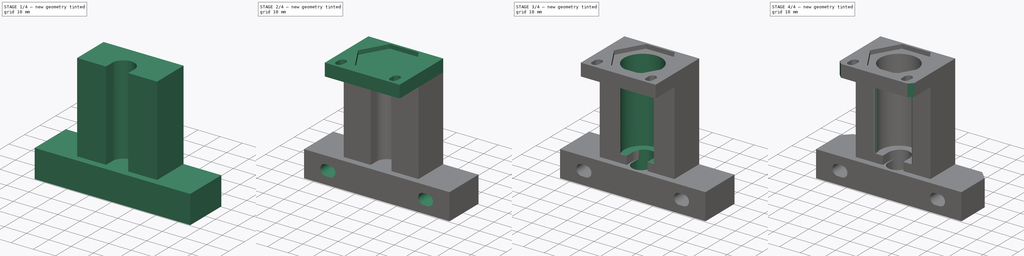
[diagram: build sequence overview — one tinted view per stage of 4, left to right]
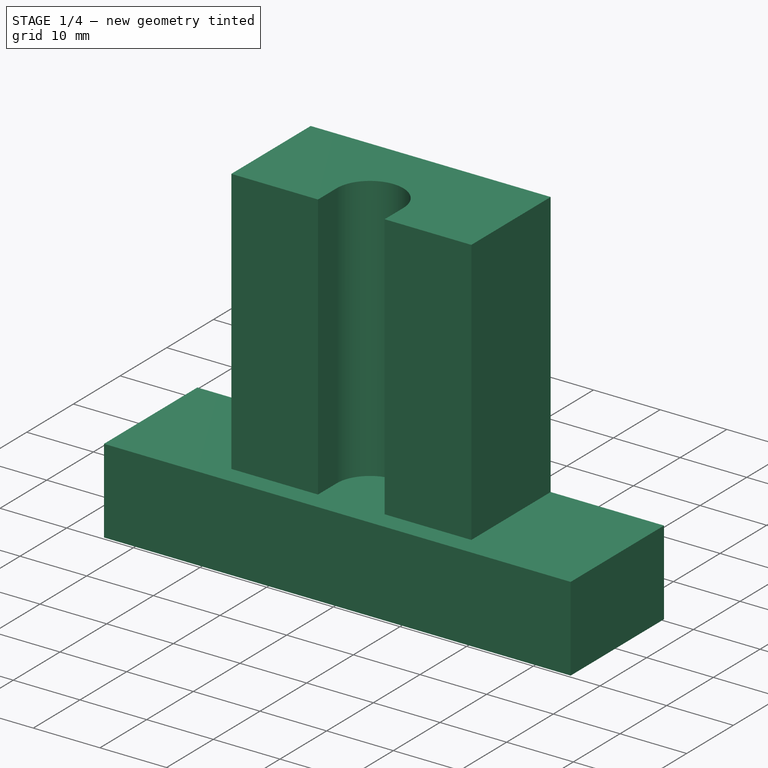
[diagram: stage 1 of 4 — iso view after this stage's code; geometry added in this stage tinted green]
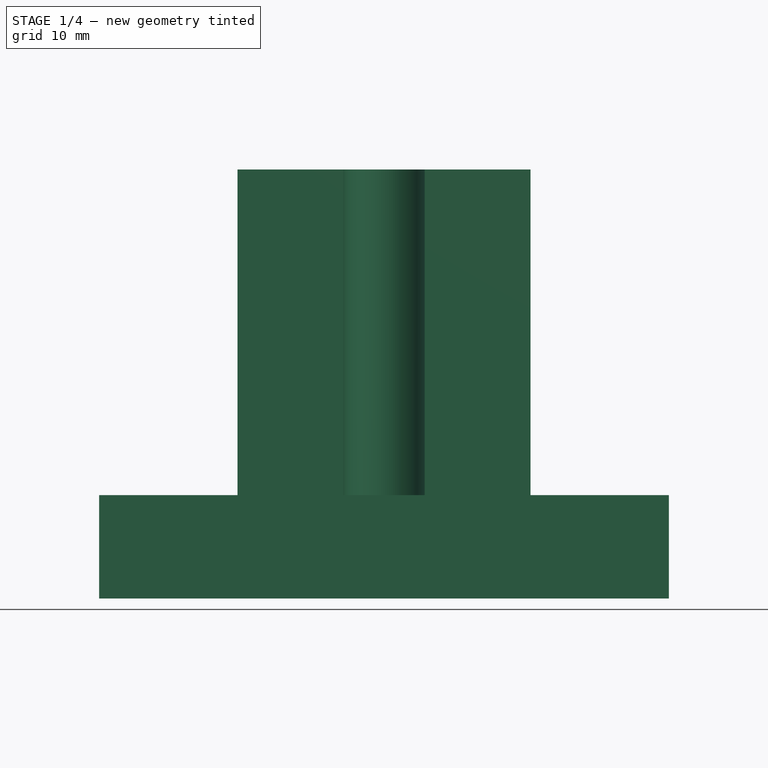
[diagram: stage 1 of 4 — front view after this stage's code; geometry added in this stage tinted green]
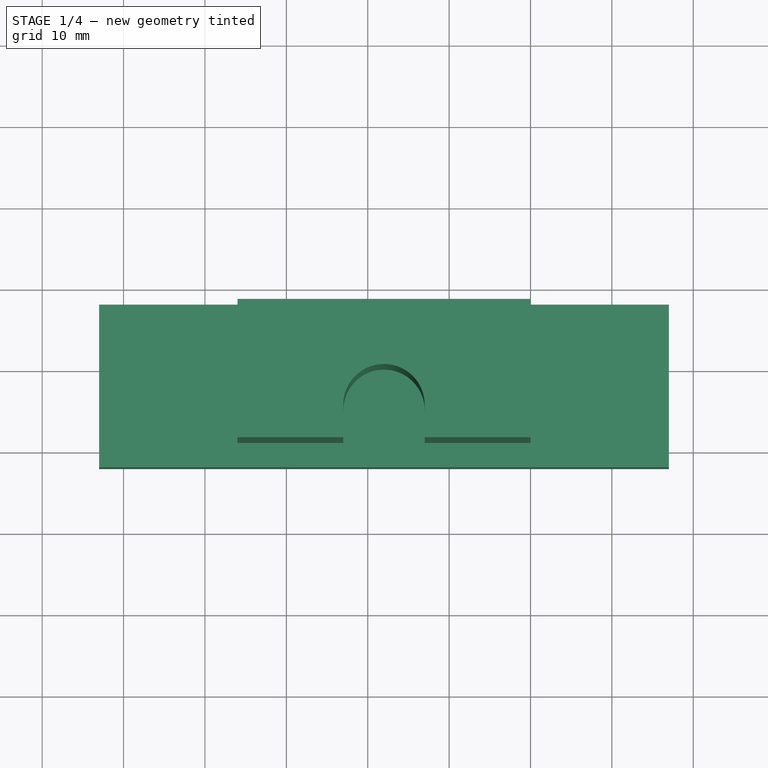
[diagram: stage 1 of 4 — top view after this stage's code; geometry added in this stage tinted green]
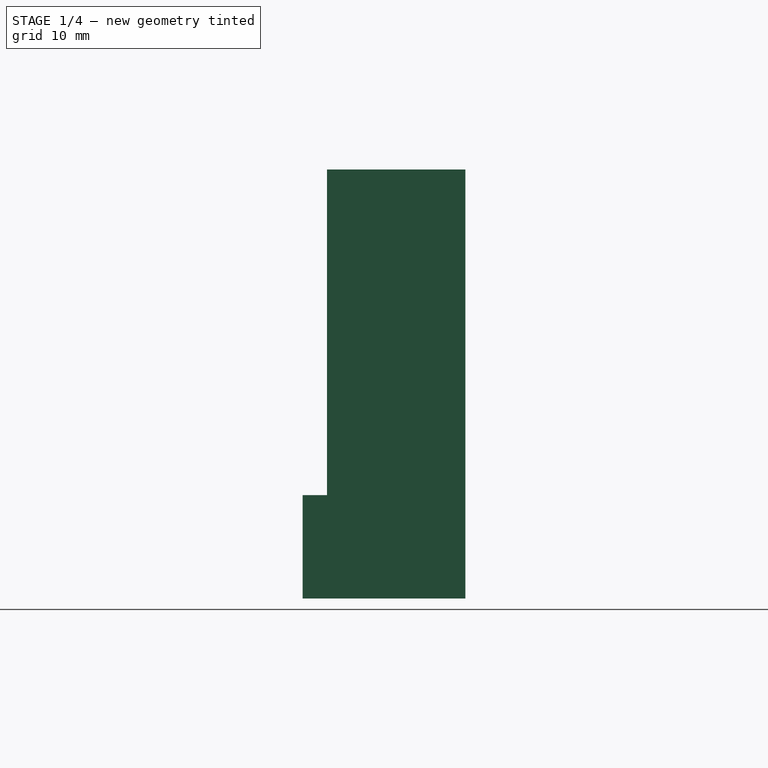
[diagram: stage 1 of 4 — right view after this stage's code; geometry added in this stage tinted green]
FCSTD DOCUMENT  (FreeCAD 0.19R)
Label: Ztower_Nema14
License: All rights reserved
LicenseURL: http://en.wikipedia.org/wiki/All_rights_reserved
objects: Sketcher::SketchObject×8, PartDesign::Pocket×5, PartDesign::Pad×3, PartDesign::Chamfer×2, PartDesign::Fillet×1, PartDesign::Body×1
note: 31 computed .brp shape members not serialized (recipe doc carries the construction recipe); baked Part::Feature solids carry a one-line shape summary decoded from their .brp

FEATURE [Sketcher::SketchObject] Sketch001  label="BottomBit"
  FullyConstrained = false
  MapMode = 5
  Support = -> [XY_Plane]
  sketch-geometry (5):
    g0: LineSegment StartX=-43 StartY=18 StartZ=0 EndX=27 EndY=18 EndZ=0
    g1: LineSegment StartX=27 StartY=-2 StartZ=0 EndX=-43 EndY=-2 EndZ=0
    g2: LineSegment StartX=27 StartY=18 StartZ=0 EndX=27 EndY=-2 EndZ=0
    g3: LineSegment StartX=-43 StartY=18 StartZ=0 EndX=-43 EndY=-2 EndZ=0
    g4: LineSegment StartX=-8 StartY=20.77 StartZ=0 EndX=-8 EndY=17.2529 EndZ=0
  constraints (13):
    c: Horizontal(g1)
    c: DistanceY(g1) = -2
    c: DistanceY(g0) = 18
    c: Coincident(g2,g0)
    c: Vertical(g2)
    c: Coincident(g3,g0)
    c: Vertical(g3)
    c: Coincident(g3,g1)
    c: Coincident(g1,g2)
    c: Horizontal(g0)
    c: Symmetric(g0,g0,g4)
    c: DistanceX(g4) = -8
    c: Distance(g0) = 70
FEATURE [PartDesign::Pad] Pad
  Direction = (1,1,1)
  Length = 12.7
  Length2 = 100
  Profile = -> Sketch001
  Type = 0
FEATURE [Sketcher::SketchObject] Sketch005  label="leadSlot"
  FullyConstrained = true
  MapMode = 5
  Placement = pos=(0,0,52.7) rot=(0,0,1;0rad)
  sketch-geometry (4):
    g0: ArcOfCircle CenterX=-8 CenterY=5 CenterZ=0 NormalX=0 NormalY=0 NormalZ=1 AngleXU=0 Radius=5 StartAngle=2e-16 EndAngle=3.14159
    g1: LineSegment StartX=-3 StartY=5 StartZ=0 EndX=-3 EndY=-7.39 EndZ=0
    g2: LineSegment StartX=-3 StartY=-7.39 StartZ=0 EndX=-13 EndY=-7.39 EndZ=0
    g3: LineSegment StartX=-13 StartY=-7.39 StartZ=0 EndX=-13 EndY=5 EndZ=0
  constraints (11):
    c: Tangent(g0,g1) = 1.5708
    c: Coincident(g1,g2)
    c: Horizontal(g2)
    c: Coincident(g2,g3)
    c: Vertical(g3)
    c: Diameter(g0) = 10
    c: Vertical(g1)
    c: DistanceX(g0) = -8
    c: DistanceY(g0) = 5
    c: Tangent(g3,g0) = 1.5708
    c: Distance(g1) = 12.39
FEATURE [Sketcher::SketchObject] Sketch006  label="leadscrew"
  FullyConstrained = true
  MapMode = 5
  Placement = pos=(0,0,12.7) rot=(0,0,1;0rad)
  sketch-geometry (4):
    g0: ArcOfCircle CenterX=-8 CenterY=6 CenterZ=0 NormalX=0 NormalY=0 NormalZ=1 AngleXU=0 Radius=4.5 StartAngle=1e-16 EndAngle=3.14159
    g1: ArcOfCircle CenterX=-8 CenterY=4 CenterZ=0 NormalX=0 NormalY=0 NormalZ=1 AngleXU=0 Radius=4.5 StartAngle=3.14159 EndAngle=6.28319
    g2: LineSegment StartX=-12.5 StartY=6 StartZ=0 EndX=-12.5 EndY=4 EndZ=0
    g3: LineSegment StartX=-3.5 StartY=6 StartZ=0 EndX=-3.5 EndY=4 EndZ=0
  constraints (10):
    c: Tangent(g0,g3) = 1.5708
    c: Tangent(g0,g2) = -1.5708
    c: Tangent(g2,g1) = -1.5708
    c: Tangent(g3,g1) = 1.5708
    c: Vertical(g2)
    c: Equal(g0,g1)
    c: DistanceY(g1) = 4
    c: DistanceY(g0) = 6
    c: DistanceX(g0) = -8
    c: Diameter(g0) = 9
FEATURE [Sketcher::SketchObject] Sketch007  label="StepperPlatform"
  FullyConstrained = false
  MapMode = 5
  Placement = pos=(0,0,52.7) rot=(0,0,1;0rad)
  sketch-geometry (22):
    g0: Circle CenterX=-21 CenterY=18 CenterZ=0 NormalX=0 NormalY=0 NormalZ=1 AngleXU=0 Radius=1.4
    g1: Circle CenterX=5 CenterY=18 CenterZ=0 NormalX=0 NormalY=0 NormalZ=1 AngleXU=0 Radius=1.4
    g2: Circle CenterX=-21 CenterY=-8 CenterZ=0 NormalX=0 NormalY=0 NormalZ=1 AngleXU=0 Radius=1.4
    g3: Circle CenterX=5 CenterY=-8 CenterZ=0 NormalX=0 NormalY=0 NormalZ=1 AngleXU=0 Radius=1.4
    g4: LineSegment StartX=-21 StartY=18 StartZ=0 EndX=5 EndY=18 EndZ=0
    g5: LineSegment StartX=5 StartY=18 StartZ=0 EndX=5 EndY=-8 EndZ=0
    g6: LineSegment StartX=5 StartY=-8 StartZ=0 EndX=-21 EndY=-8 EndZ=0
    g7: LineSegment StartX=-21 StartY=-8 StartZ=0 EndX=-21 EndY=18 EndZ=0
    g8: Circle CenterX=-8 CenterY=5 CenterZ=0 NormalX=0 NormalY=0 NormalZ=1 AngleXU=0 Radius=1.66613
    g9: LineSegment StartX=-26 StartY=18 StartZ=0 EndX=10 EndY=18 EndZ=0
    g10: LineSegment StartX=10 StartY=18 StartZ=0 EndX=10 EndY=-12 EndZ=0
    g11: LineSegment StartX=10 StartY=-12 StartZ=0 EndX=-26 EndY=-12 EndZ=0
    g12: LineSegment StartX=-26 StartY=-12 StartZ=0 EndX=-26 EndY=18 EndZ=0
    g13: LineSegment StartX=-8 StartY=22.1839 StartZ=0 EndX=-8 EndY=5 EndZ=0
    g14: ArcOfCircle CenterX=-21 CenterY=-7 CenterZ=0 NormalX=0 NormalY=0 NormalZ=1 AngleXU=0 Radius=1.75 StartAngle=0 EndAngle=3.14159
    g15: ArcOfCircle CenterX=-21 CenterY=-9 CenterZ=0 NormalX=0 NormalY=0 NormalZ=1 AngleXU=0 Radius=1.75 StartAngle=3.14159 EndAngle=6.28319
    g16: LineSegment StartX=-22.75 StartY=-7 StartZ=0 EndX=-22.75 EndY=-9 EndZ=0
    g17: LineSegment StartX=-19.25 StartY=-7 StartZ=0 EndX=-19.25 EndY=-9 EndZ=0
    g18: ArcOfCircle CenterX=5 CenterY=-7 CenterZ=0 NormalX=0 NormalY=0 NormalZ=1 AngleXU=0 Radius=1.75 StartAngle=1e-16 EndAngle=3.14159
    g19: ArcOfCircle CenterX=5 CenterY=-9 CenterZ=0 NormalX=0 NormalY=0 NormalZ=1 AngleXU=0 Radius=1.75 StartAngle=3.14159 EndAngle=6.28319
    g20: LineSegment StartX=3.25 StartY=-7 StartZ=0 EndX=3.25 EndY=-9 EndZ=0
    g21: LineSegment StartX=6.75 StartY=-7 StartZ=0 EndX=6.75 EndY=-9 EndZ=0
  constraints (52):
    c: Coincident(g4,g0)
    c: Coincident(g4,g1)
    c: Horizontal(g4)
    c: Coincident(g4,g5)
    c: Coincident(g5,g3)
    c: Coincident(g5,g6)
    c: Coincident(g6,g2)
    c: Horizontal(g6)
    c: Coincident(g6,g7)
    c: Coincident(g7,g4)
    c: Distance(g7) = 26
    c: Equal(g7,g4)
    c: Equal(g4,g5)
    c: Vertical(g7)
    c: DistanceX(g8) = -8
    c: DistanceY(g8) = 5
    c: Diameter(g0) = 2.8
    c: Equal(g0,g1)
    c: Equal(g0,g3)
    c: Equal(g0,g2)
    c: Coincident(g9,g10)
    c: Coincident(g10,g11)
    c: Coincident(g11,g12)
    c: Coincident(g12,g9)
    c: Horizontal(g9)
    c: Horizontal(g11)
    c: Vertical(g10)
    c: Vertical(g12)
    c: Distance(g9) = 36
    c: Coincident(g13,g8)
    c: Tangent(g14,g17) = 1.5708
    c: Tangent(g14,g16) = -1.5708
    c: Tangent(g16,g15) = -1.5708
    c: Tangent(g17,g15) = 1.5708
    c: Vertical(g16)
    c: Equal(g14,g15)
    c: PointOnObject(g14,g7)
    c: Distance(g14,g2) = 1
    c: Distance(g15,g2) = 1
    c: Tangent(g18,g21) = 1.5708
    c: Tangent(g18,g20) = -1.5708
    c: Tangent(g20,g19) = -1.5708
    c: Tangent(g21,g19) = 1.5708
    c: Vertical(g20)
    c: Equal(g18,g19)
    c: PointOnObject(g18,g5)
    c: Distance(g18,g3) = 1
    c: Distance(g19,g3) = 1
    c: Diameter(g18) = 3.5
    c: Diameter(g14) = 3.5
    c: DistanceY(g9) = 18
    c: DistanceY(g10) = -12
FEATURE [Sketcher::SketchObject] Sketch008  label="hex"
  FullyConstrained = true
  MapMode = 5
  Placement = pos=(0,0,56.7) rot=(0,0,1;0rad)
  sketch-geometry (8):
    g0: Circle CenterX=-8 CenterY=5 CenterZ=0 NormalX=0 NormalY=0 NormalZ=1 AngleXU=0 Radius=11
    g1: LineSegment StartX=5.85641 StartY=5 StartZ=0 EndX=-1.0718 EndY=17 EndZ=0
    g2: LineSegment StartX=-1.0718 StartY=17 StartZ=0 EndX=-14.9282 EndY=17 EndZ=0
    g3: LineSegment StartX=-14.9282 StartY=17 StartZ=0 EndX=-21.8564 EndY=5 EndZ=0
    g4: LineSegment StartX=-21.8564 StartY=5 StartZ=0 EndX=-14.9282 EndY=-7 EndZ=0
    g5: LineSegment StartX=-14.9282 StartY=-7 StartZ=0 EndX=-1.0718 EndY=-7 EndZ=0
    g6: LineSegment StartX=-1.0718 StartY=-7 StartZ=0 EndX=5.85641 EndY=5 EndZ=0
    g7: Circle CenterX=-8 CenterY=5 CenterZ=0 NormalX=0 NormalY=0 NormalZ=1 AngleXU=0 Radius=13.8564
  constraints (19):
    c: Diameter(g0) = 22
    c: DistanceX(g0) = -8
    c: DistanceY(g0) = 5
    c: Coincident(g1,g2)
    c: Coincident(g2,g3)
    c: Coincident(g3,g4)
    c: Coincident(g4,g5)
    c: Coincident(g5,g6)
    c: Coincident(g6,g1)
    c: Equal(g1, g2-g6) x5
    c: PointOnObject(g1,g7)
    c: PointOnObject(g2,g7)
    c: PointOnObject(g3,g7)
    c: PointOnObject(g4,g7)
    c: PointOnObject(g5,g7)
    c: PointOnObject(g6,g7)
    c: Coincident(g7,g0)
    c: Distance(g1,g4) = 24
    c: Horizontal(g2)
FEATURE [Sketcher::SketchObject] Sketch010  label="mountSlots"
  FullyConstrained = true
  MapMode = 5
  Placement = pos=(0,20.9938,0) rot=(0,0.707107,0.707107;3.14159rad)
  sketch-geometry (9):
    g0: ArcOfCircle CenterX=-16.5 CenterY=6.35 CenterZ=0 NormalX=0 NormalY=0 NormalZ=1 AngleXU=0 Radius=2.6 StartAngle=1.5708 EndAngle=4.71239
    g1: ArcOfCircle CenterX=-14.5 CenterY=6.35 CenterZ=0 NormalX=0 NormalY=0 NormalZ=1 AngleXU=0 Radius=2.6 StartAngle=4.71239 EndAngle=7.85398
    g2: LineSegment StartX=-16.5 StartY=3.75 StartZ=0 EndX=-14.5 EndY=3.75 EndZ=0
    g3: LineSegment StartX=-16.5 StartY=8.95 StartZ=0 EndX=-14.5 EndY=8.95 EndZ=0
    g4: ArcOfCircle CenterX=30.5 CenterY=6.35 CenterZ=0 NormalX=0 NormalY=0 NormalZ=1 AngleXU=0 Radius=2.6 StartAngle=1.5708 EndAngle=4.71239
    g5: ArcOfCircle CenterX=32.5 CenterY=6.35 CenterZ=0 NormalX=0 NormalY=0 NormalZ=1 AngleXU=0 Radius=2.6 StartAngle=4.71239 EndAngle=7.85398
    g6: LineSegment StartX=30.5 StartY=3.75 StartZ=0 EndX=32.5 EndY=3.75 EndZ=0
    g7: LineSegment StartX=30.5 StartY=8.95 StartZ=0 EndX=32.5 EndY=8.95 EndZ=0
    g8: Circle CenterX=8 CenterY=6.35 CenterZ=0 NormalX=0 NormalY=0 NormalZ=1 AngleXU=0 Radius=0.77
  constraints (22):
    c: Tangent(g0,g3) = 1.5708
    c: Tangent(g0,g2) = -1.5708
    c: Tangent(g2,g1) = -1.5708
    c: Tangent(g3,g1) = 1.5708
    c: Horizontal(g2)
    c: Equal(g0,g1)
    c: Tangent(g4,g7) = 1.5708
    c: Tangent(g4,g6) = -1.5708
    c: Tangent(g6,g5) = -1.5708
    c: Tangent(g7,g5) = 1.5708
    c: Horizontal(g6)
    c: Equal(g4,g5)
    c: Distance(g1,g1) = 5.2
    c: Distance(g5,g5) = 5.2
    c: DistanceY(g1) = 6.35
    c: Distance(g6) = 2
    c: Distance(g2) = 2
    c: Distance(g1,g4) = 45
    c: Symmetric(g1,g4,g8)
    c: DistanceX(g8) = 8
    c: DistanceY(g5) = 6.35
    c: Diameter(g8) = 1.54
FEATURE [Sketcher::SketchObject] Sketch012  label="towerProper"
  FullyConstrained = false
  MapMode = 5
  Placement = pos=(0,0,12.7) rot=(0,0,1;0rad)
  Support = -> [Pad]
  sketch-geometry (5):
    g0: LineSegment StartX=-26 StartY=18 StartZ=0 EndX=10 EndY=18 EndZ=0
    g1: LineSegment StartX=10 StartY=18 StartZ=0 EndX=10 EndY=1 EndZ=0
    g2: LineSegment StartX=10 StartY=1 StartZ=0 EndX=-26 EndY=1 EndZ=0
    g3: LineSegment StartX=-26 StartY=1 StartZ=0 EndX=-26 EndY=18 EndZ=0
    g4: LineSegment StartX=-8 StartY=21.6614 StartZ=0 EndX=-8 EndY=16.5307 EndZ=0
  constraints (13):
    c: Coincident(g0,g1)
    c: Coincident(g1,g2)
    c: Coincident(g2,g3)
    c: Coincident(g3,g0)
    c: Horizontal(g2)
    c: Vertical(g1)
    c: Vertical(g3)
    c: Distance(g0) = 36
    c: Vertical(g4)
    c: Symmetric(g0,g0,g4)
    c: DistanceX(g4) = -8
    c: DistanceY(g0) = 18
    c: DistanceY(g1) = 1
FEATURE [PartDesign::Pad] Pad001
  BaseFeature = -> Pad
  Direction = (1,1,1)
  Length = 40
  Length2 = 100
  Profile = -> Sketch012
  Type = 0
FEATURE [PartDesign::Pocket] Pocket
  BaseFeature = -> Pad001
  Length = 40
  Length2 = 100
  Profile = -> Sketch005
  Type = 0
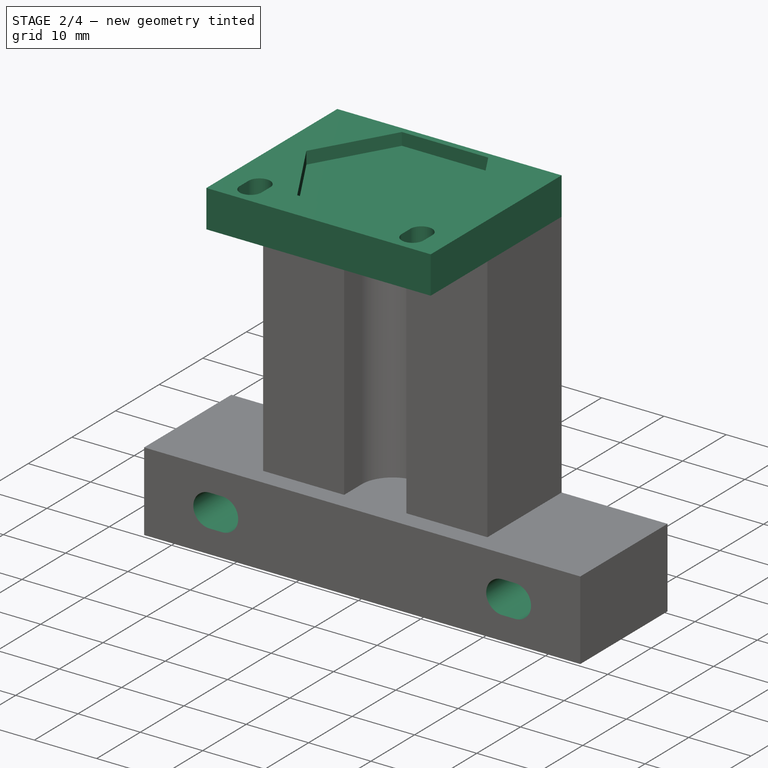
[diagram: stage 2 of 4 — iso view after this stage's code; geometry added in this stage tinted green]
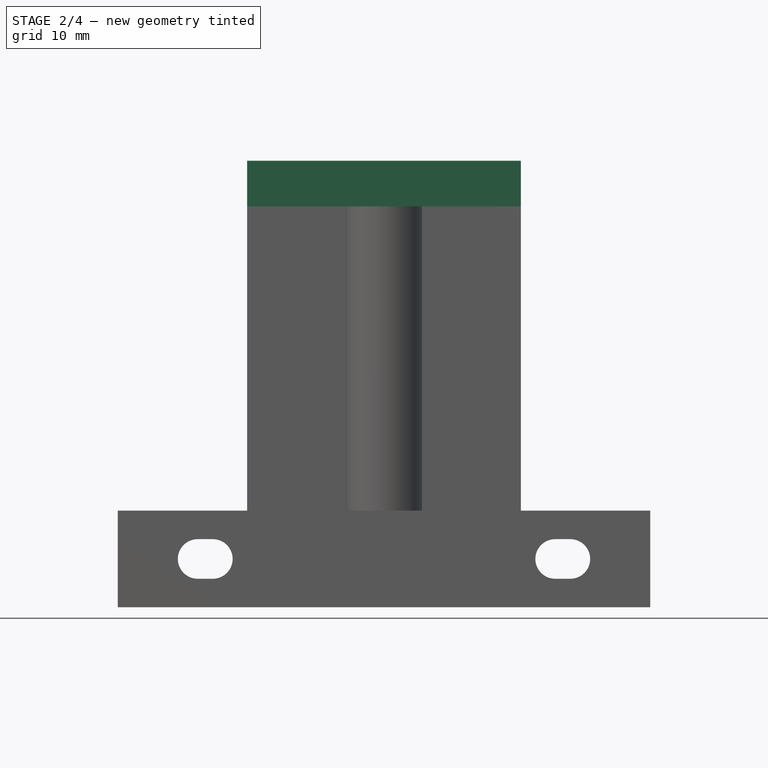
[diagram: stage 2 of 4 — front view after this stage's code; geometry added in this stage tinted green]
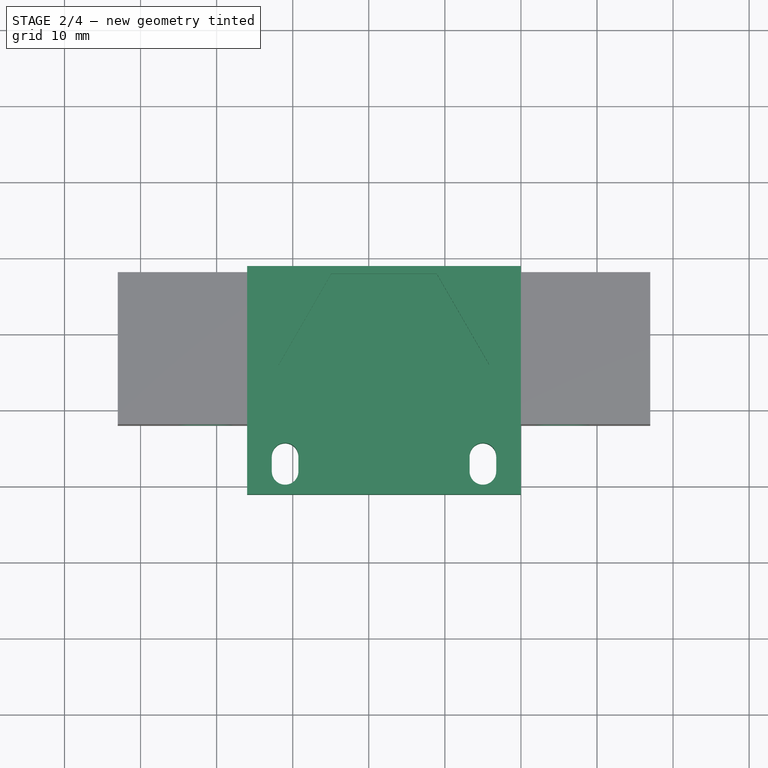
[diagram: stage 2 of 4 — top view after this stage's code; geometry added in this stage tinted green]
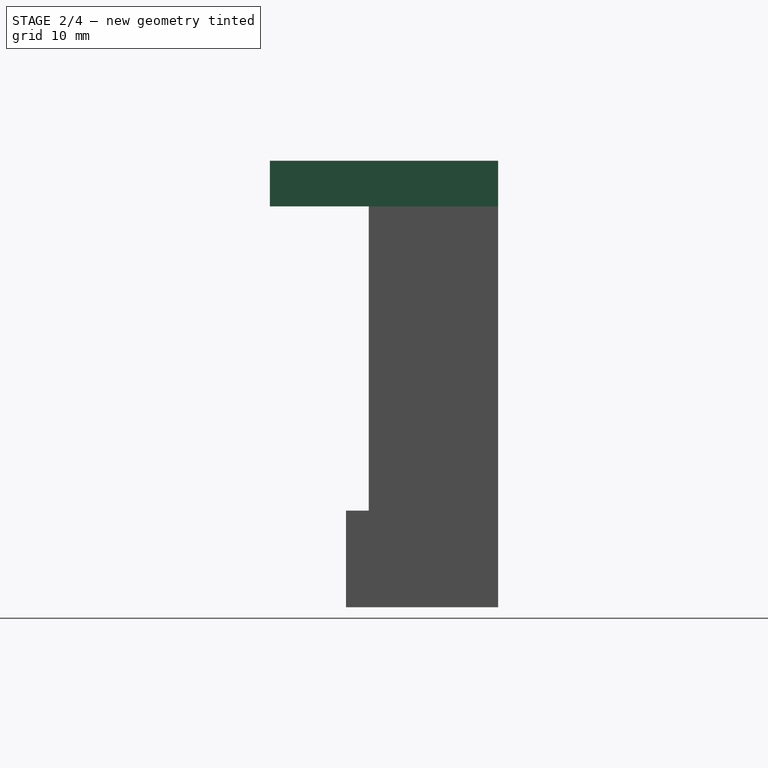
[diagram: stage 2 of 4 — right view after this stage's code; geometry added in this stage tinted green]
FEATURE [PartDesign::Pocket] Pocket001
  BaseFeature = -> Pocket
  Length = 5
  Length2 = 100
  Profile = -> Sketch010
  Type = 1
FEATURE [PartDesign::Pad] Pad002
  BaseFeature = -> Pocket001
  Direction = (1,1,1)
  Length = 6
  Length2 = 100
  Profile = -> Sketch007
  Type = 0
FEATURE [PartDesign::Pocket] Pocket002
  BaseFeature = -> Pad002
  Length = 2
  Length2 = 100
  Profile = -> Sketch008
  Reversed = true
  Type = 0
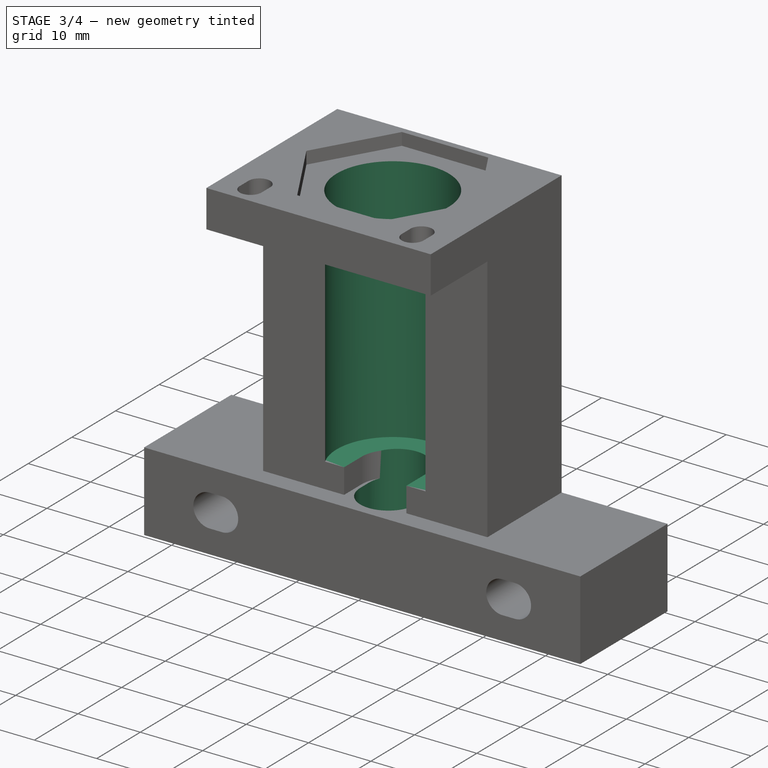
[diagram: stage 3 of 4 — iso view after this stage's code; geometry added in this stage tinted green]
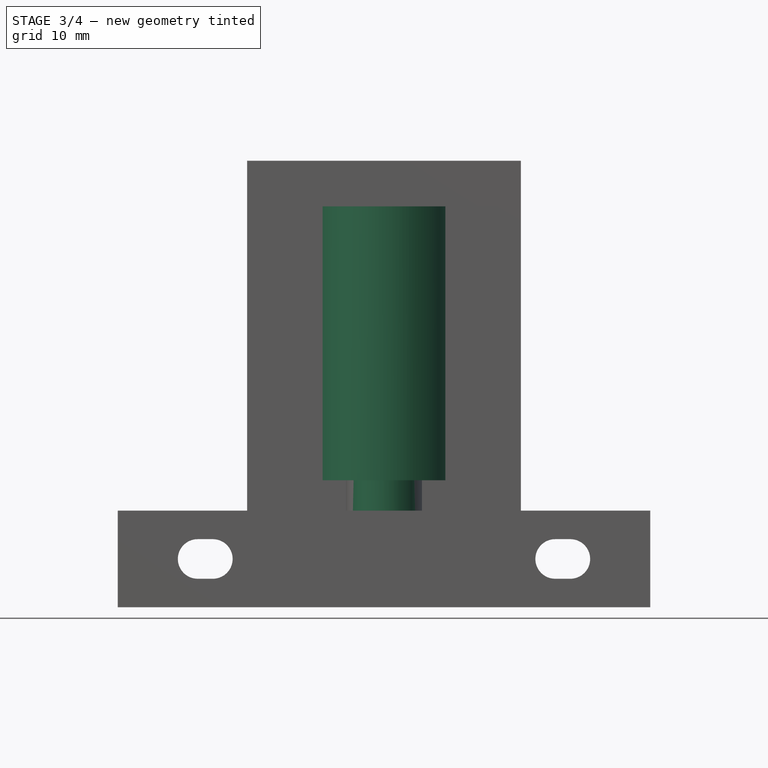
[diagram: stage 3 of 4 — front view after this stage's code; geometry added in this stage tinted green]
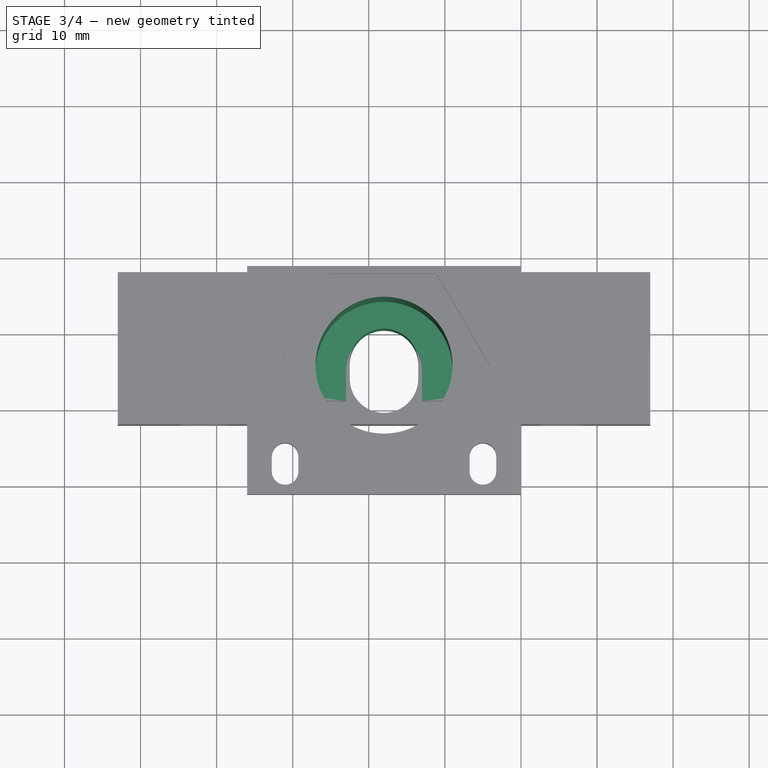
[diagram: stage 3 of 4 — top view after this stage's code; geometry added in this stage tinted green]
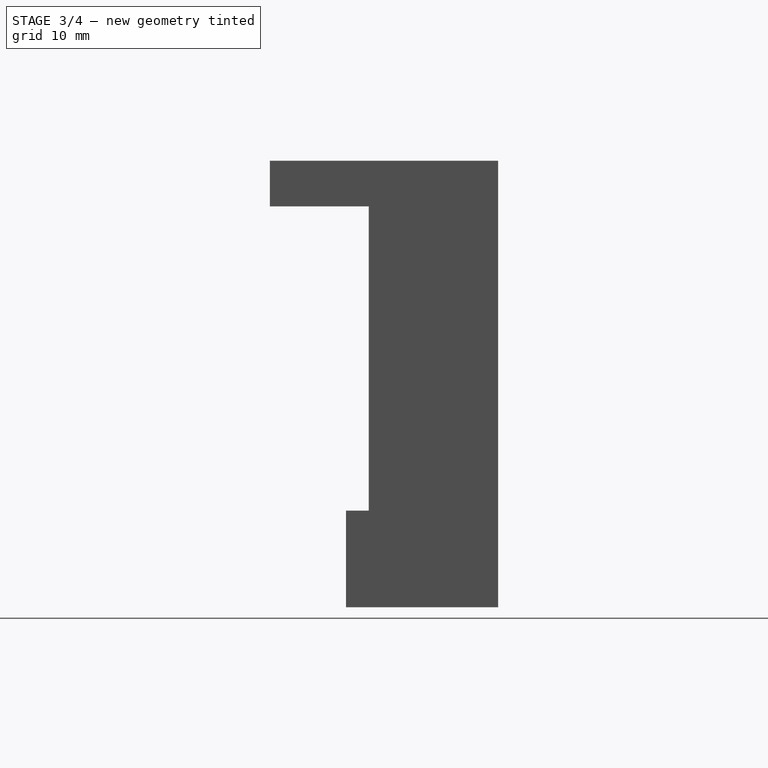
[diagram: stage 3 of 4 — right view after this stage's code; geometry added in this stage tinted green]
FEATURE [PartDesign::Pocket] Pocket003
  BaseFeature = -> Pocket002
  Length = 22
  Length2 = 100
  Profile = -> Sketch006
  Type = 4
FEATURE [Sketcher::SketchObject] Sketch013  label="counterbore"
  FullyConstrained = true
  MapMode = 5
  Placement = pos=(0,0,56.7) rot=(0,0,1;0rad)
  Support = -> [Pocket003]
  sketch-geometry (1):
    g0: Circle CenterX=-8 CenterY=5 CenterZ=0 NormalX=0 NormalY=0 NormalZ=1 AngleXU=0 Radius=9
  constraints (3):
    c: DistanceX(g0) = -8
    c: DistanceY(g0) = 5
    c: Diameter(g0) = 18
FEATURE [PartDesign::Pocket] Pocket004
  BaseFeature = -> Pocket003
  Length = 40
  Length2 = 100
  Profile = -> Sketch013
  Type = 0
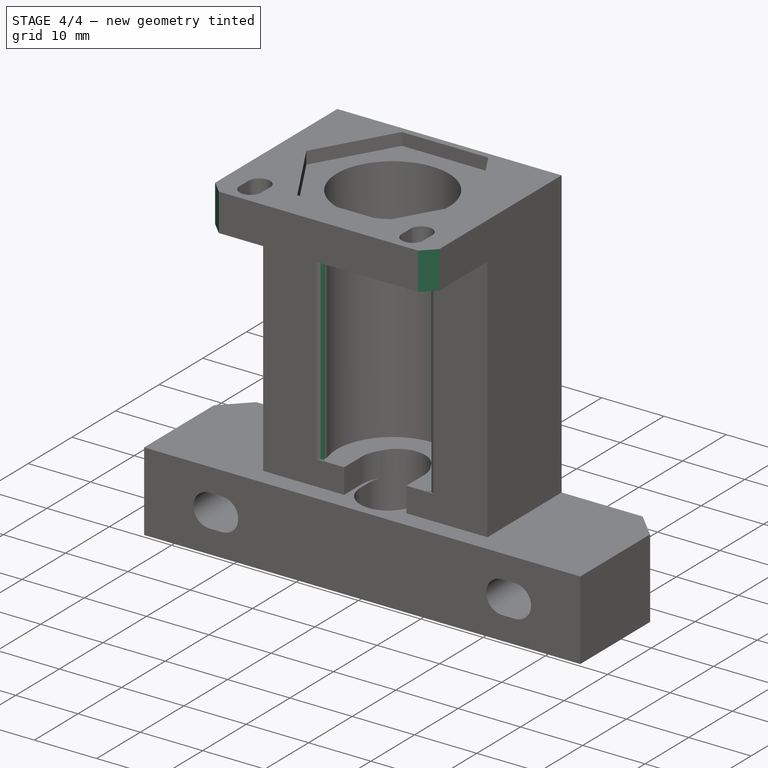
[diagram: stage 4 of 4 — iso view after this stage's code; geometry added in this stage tinted green]
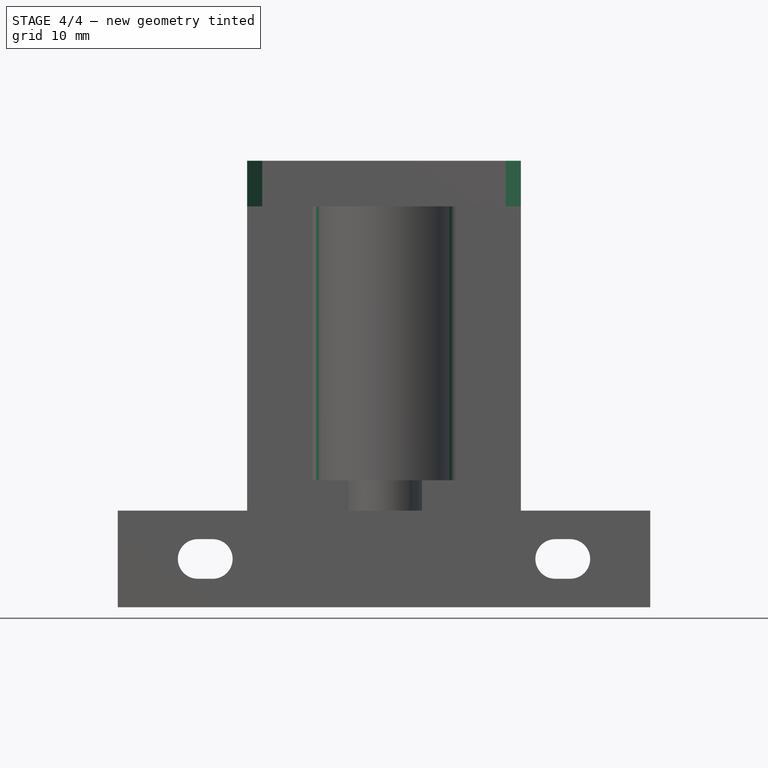
[diagram: stage 4 of 4 — front view after this stage's code; geometry added in this stage tinted green]
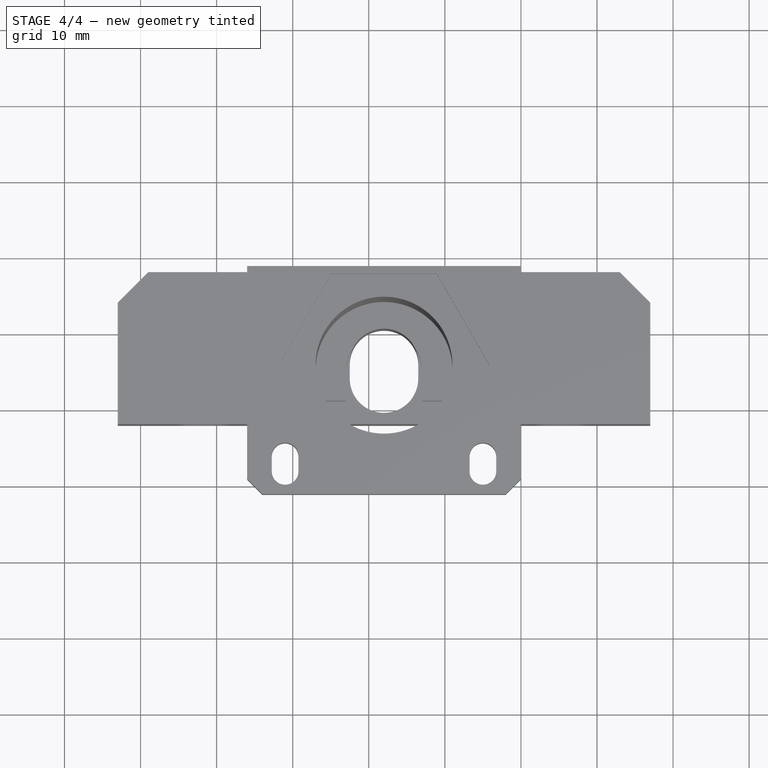
[diagram: stage 4 of 4 — top view after this stage's code; geometry added in this stage tinted green]
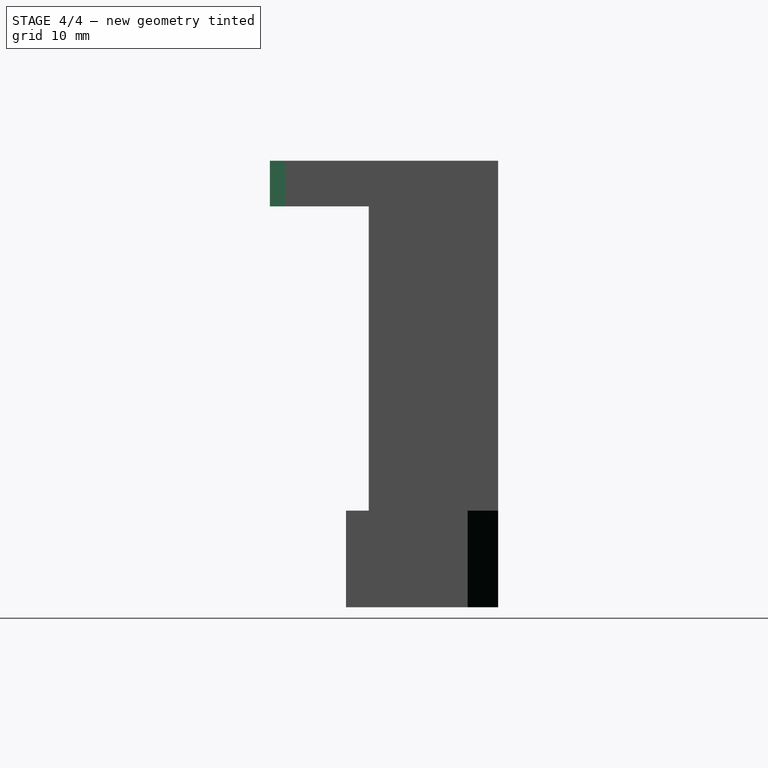
[diagram: stage 4 of 4 — right view after this stage's code; geometry added in this stage tinted green]
FEATURE [PartDesign::Fillet] Fillet
  Base = -> Pocket004 [Edge83,Edge72]
  BaseFeature = -> Pocket004
  Radius = 1
  SupportTransform = false
FEATURE [PartDesign::Chamfer] Chamfer
  Angle = 45
  Base = -> Fillet [Edge52,Edge57]
  BaseFeature = -> Fillet
  ChamferType = 0
  FlipDirection = false
  Size = 2
  Size2 = 1
  SupportTransform = false
FEATURE [PartDesign::Chamfer] Chamfer001
  Angle = 45
  Base = -> Chamfer [Edge135,Edge133]
  BaseFeature = -> Chamfer
  ChamferType = 0
  FlipDirection = false
  Size = 4
  Size2 = 1
  SupportTransform = false
FEATURE [PartDesign::Body] Body
  Group = -> [Sketch001,Pad,Sketch005,Sketch006,Sketch007,Sketch008,Sketch010,Sketch012,Pad001,Pocket,Pocket001,Pad002,Pocket002,Pocket003,Sketch013,Pocket004,Fillet,Chamfer,Chamfer001]
  Origin = -> Origin
  Tip = -> Chamfer001
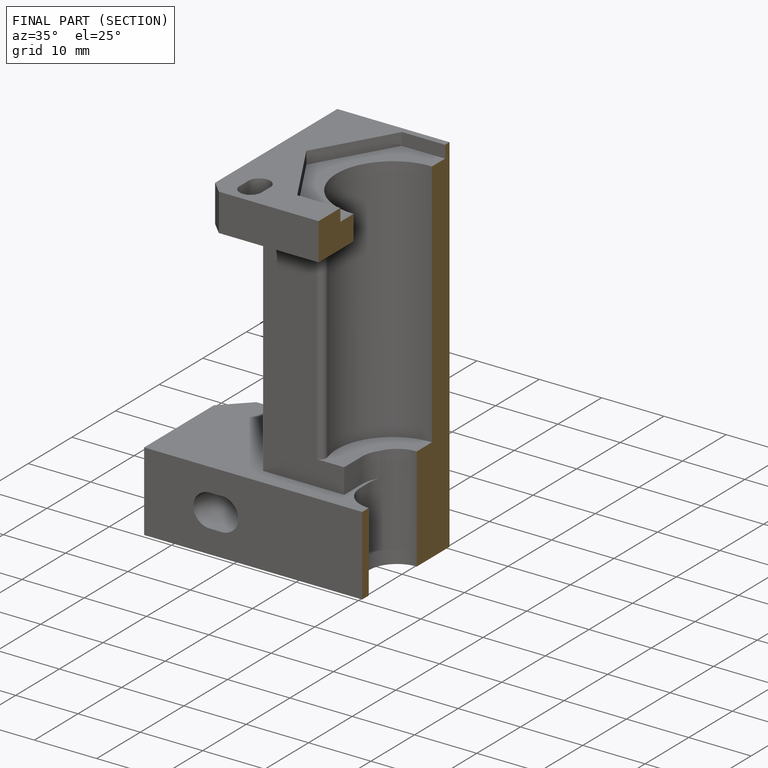
[diagram: finished part — half-section view (interior)]
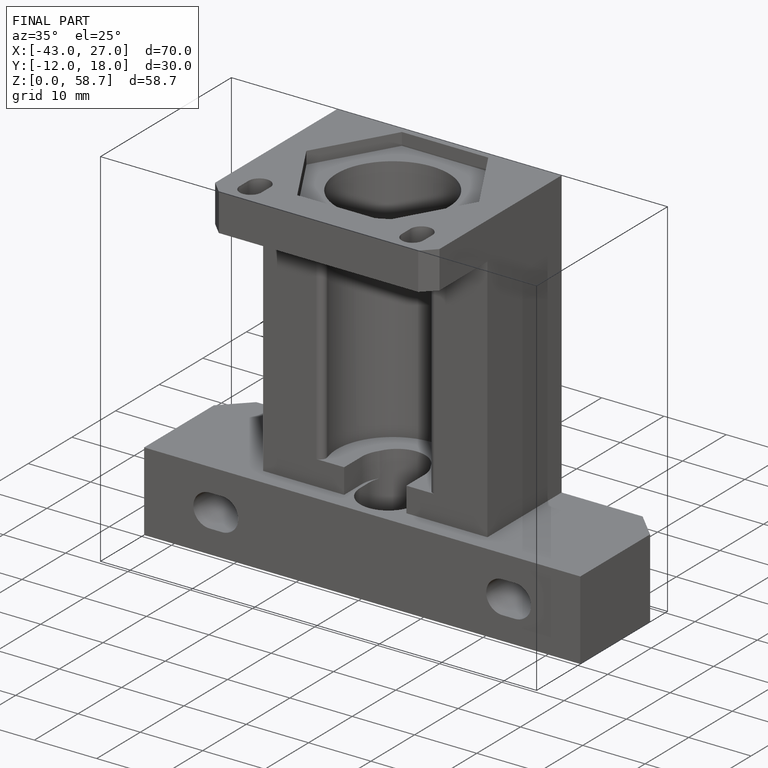
[diagram: finished part — iso view with bounding-box wireframe]
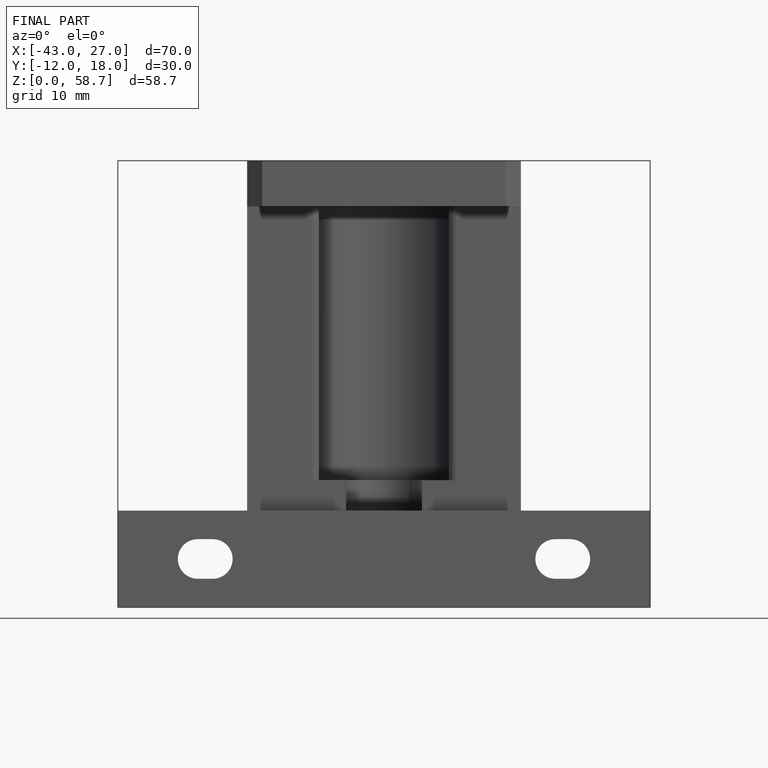
[diagram: finished part — front view with bounding-box wireframe]
